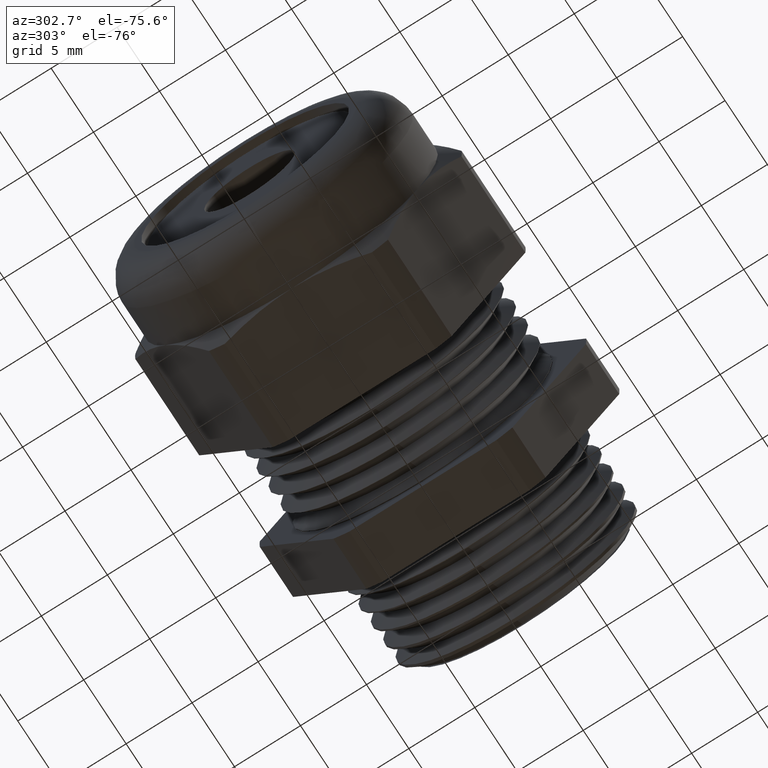
[diagram: clean part render]
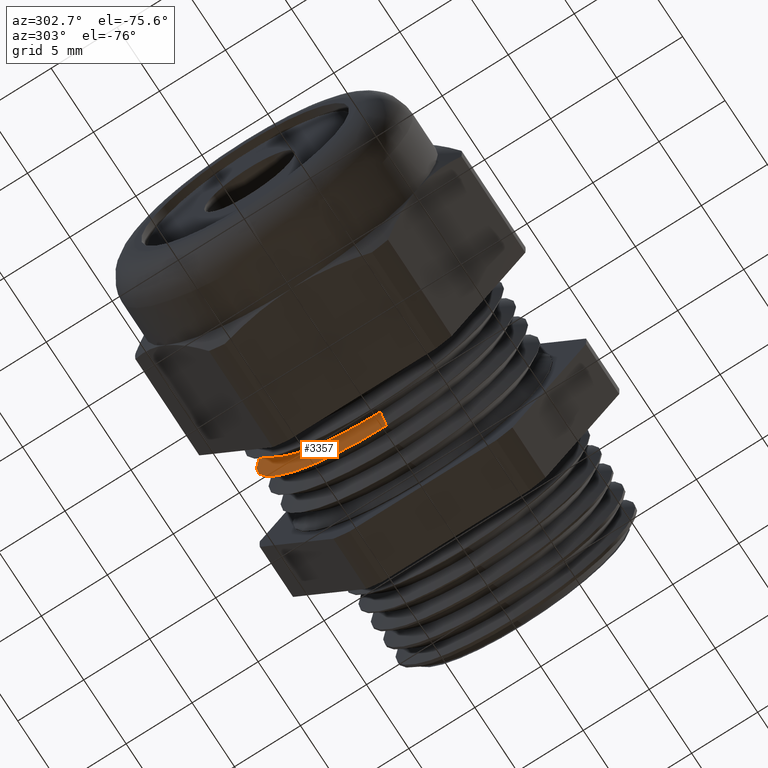
[diagram: same view with one face highlighted and labeled with its STEP entity id]
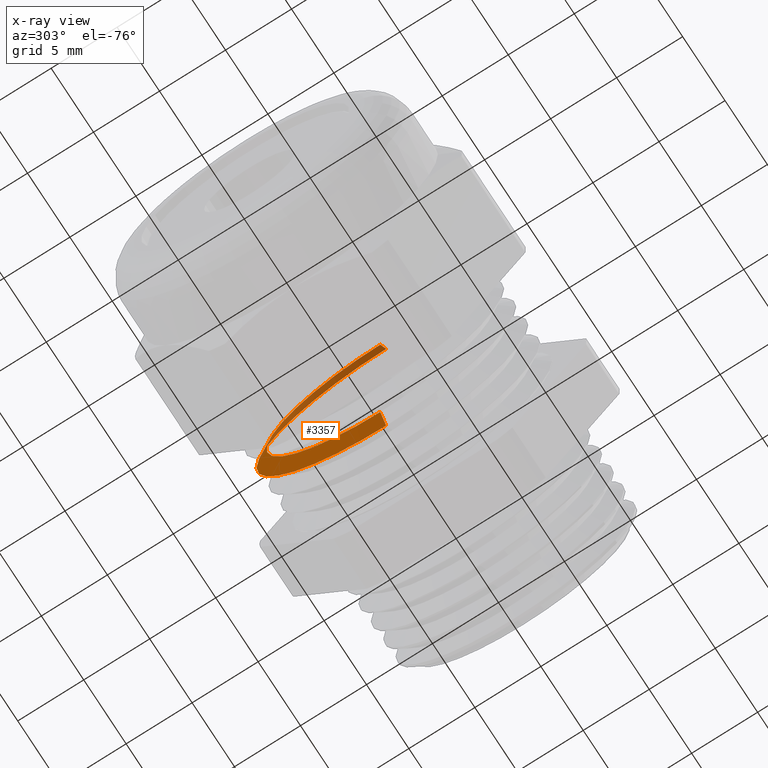
[diagram: x-ray of the same camera — body ghosted, the highlighted face saturated]
A machine part, auxiliary view. The second image highlights one B-rep face of the part: STEP entity #3357.
The next image is the same camera in x-ray: the body ghosted, the highlighted face saturated — about 29% of this face is hidden behind the body in this view.
In plain terms, the highlighted conical surface has half-angle 60 deg.
Its self-contained STEP definition (entity closure, byte-faithful):
#2772 = DIRECTION ( 'NONE',  ( 0.0000000000000000000, 0.0000000000000000000, -1.000000000000000000 ) ) ;
#2773 = DIRECTION ( 'NONE',  ( 1.000000000000000000, 0.0000000000000000000, 0.0000000000000000000 ) ) ;
#2774 = CARTESIAN_POINT ( 'NONE',  ( -0.3523333461552113900, 0.0000000000000000000, 0.0000000000000000000 ) ) ;
#2775 = AXIS2_PLACEMENT_3D ( 'NONE', #2774, #2773, #2772 ) ;
#2777 = CONICAL_SURFACE ( 'NONE', #2775, 0.3392686249999999900, 1.047197551196595600 ) ;
#2778 = FACE_OUTER_BOUND ( 'NONE', #3358, .T. ) ;
#2802 = DIRECTION ( 'NONE',  ( 0.0000000000000000000, 0.0000000000000000000, -1.000000000000000000 ) ) ;
#2803 = DIRECTION ( 'NONE',  ( 1.000000000000000000, 0.0000000000000000000, 0.0000000000000000000 ) ) ;
#2804 = CARTESIAN_POINT ( 'NONE',  ( -0.3248333589770892000, 0.0000000000000000000, 0.0000000000000000000 ) ) ;
#2805 = AXIS2_PLACEMENT_3D ( 'NONE', #2804, #2803, #2802 ) ;
#2806 = CIRCLE ( 'NONE', #2805, 0.3869000000000000200 ) ;
#2807 = DIRECTION ( 'NONE',  ( 0.5000000000000017800, 0.0000000000000000000, -0.8660254037844374900 ) ) ;
#2808 = VECTOR ( 'NONE', #2807, 39.37007874015748100 ) ;
#2809 = CARTESIAN_POINT ( 'NONE',  ( -0.3523333461552113900, 0.0000000000000000000, -0.3392686249999999900 ) ) ;
#2810 = LINE ( 'NONE', #2809, #2808 ) ;
#3107 = CARTESIAN_POINT ( 'NONE',  ( -0.3523333461552113900, 0.0000000000000000000, -0.3392686249999999900 ) ) ;
#3108 = CARTESIAN_POINT ( 'NONE',  ( -0.3523333461552113900, 4.446500411237423700E-017, 0.3392686249999999900 ) ) ;
#3139 = CARTESIAN_POINT ( 'NONE',  ( -0.3248333589770892000, 4.738158465901109900E-017, -0.3869000000000000200 ) ) ;
#3140 = CARTESIAN_POINT ( 'NONE',  ( -0.3248333589770892000, 0.0000000000000000000, 0.3869000000000000200 ) ) ;
#3141 = DIRECTION ( 'NONE',  ( 0.5000000000000017800, 1.060575238724905400E-016, 0.8660254037844374900 ) ) ;
#3142 = VECTOR ( 'NONE', #3141, 39.37007874015748100 ) ;
#3143 = CARTESIAN_POINT ( 'NONE',  ( -0.3523333461552113900, 4.154842356573737500E-017, 0.3392686249999999900 ) ) ;
#3144 = LINE ( 'NONE', #3143, #3142 ) ;
#3157 = DIRECTION ( 'NONE',  ( 0.0000000000000000000, 0.0000000000000000000, -1.000000000000000000 ) ) ;
#3158 = DIRECTION ( 'NONE',  ( 1.000000000000000000, 0.0000000000000000000, 0.0000000000000000000 ) ) ;
#3159 = CARTESIAN_POINT ( 'NONE',  ( -0.3523333461552113900, 0.0000000000000000000, 0.0000000000000000000 ) ) ;
#3160 = AXIS2_PLACEMENT_3D ( 'NONE', #3159, #3158, #3157 ) ;
#3161 = CIRCLE ( 'NONE', #3160, 0.3392686249999999900 ) ;
#3357 = ADVANCED_FACE ( 'NONE', ( #2778 ), #2777, .T. ) ;
#3358 = EDGE_LOOP ( 'NONE', ( #3558, #3559, #3557, #3374 ) ) ;
#3373 = EDGE_CURVE ( 'NONE', #3545, #3556, #2810, .T. ) ;
#3374 = ORIENTED_EDGE ( 'NONE', *, *, #3373, .F. ) ;
#3376 = EDGE_CURVE ( 'NONE', #3556, #3555, #2806, .T. ) ;
#3544 = VERTEX_POINT ( 'NONE', #3108 ) ;
#3545 = VERTEX_POINT ( 'NONE', #3107 ) ;
#3549 = EDGE_CURVE ( 'NONE', #3545, #3544, #3161, .T. ) ;
#3554 = EDGE_CURVE ( 'NONE', #3544, #3555, #3144, .T. ) ;
#3555 = VERTEX_POINT ( 'NONE', #3140 ) ;
#3556 = VERTEX_POINT ( 'NONE', #3139 ) ;
#3557 = ORIENTED_EDGE ( 'NONE', *, *, #3376, .F. ) ;
#3558 = ORIENTED_EDGE ( 'NONE', *, *, #3549, .T. ) ;
#3559 = ORIENTED_EDGE ( 'NONE', *, *, #3554, .T. ) ;